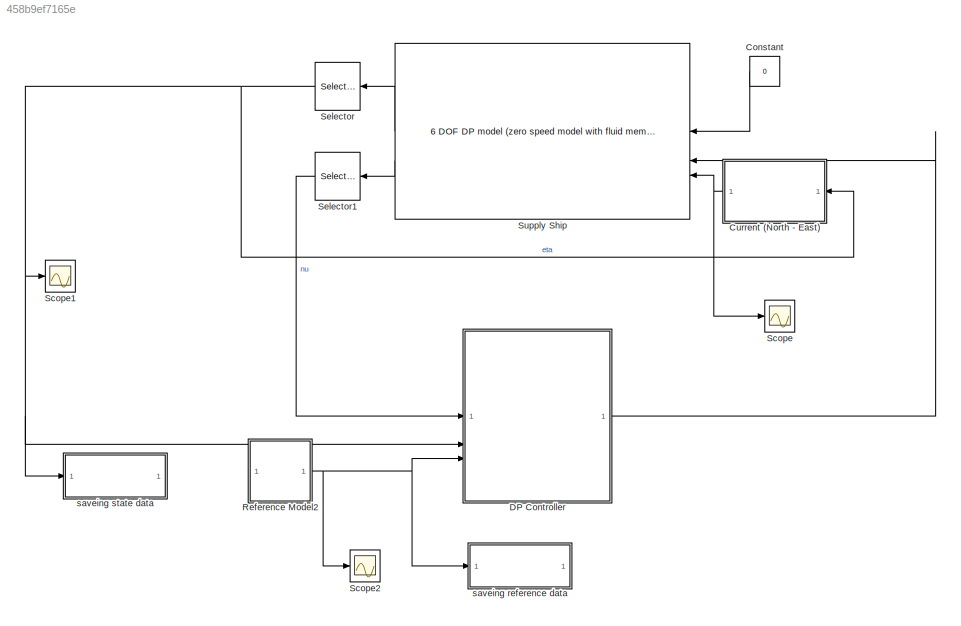
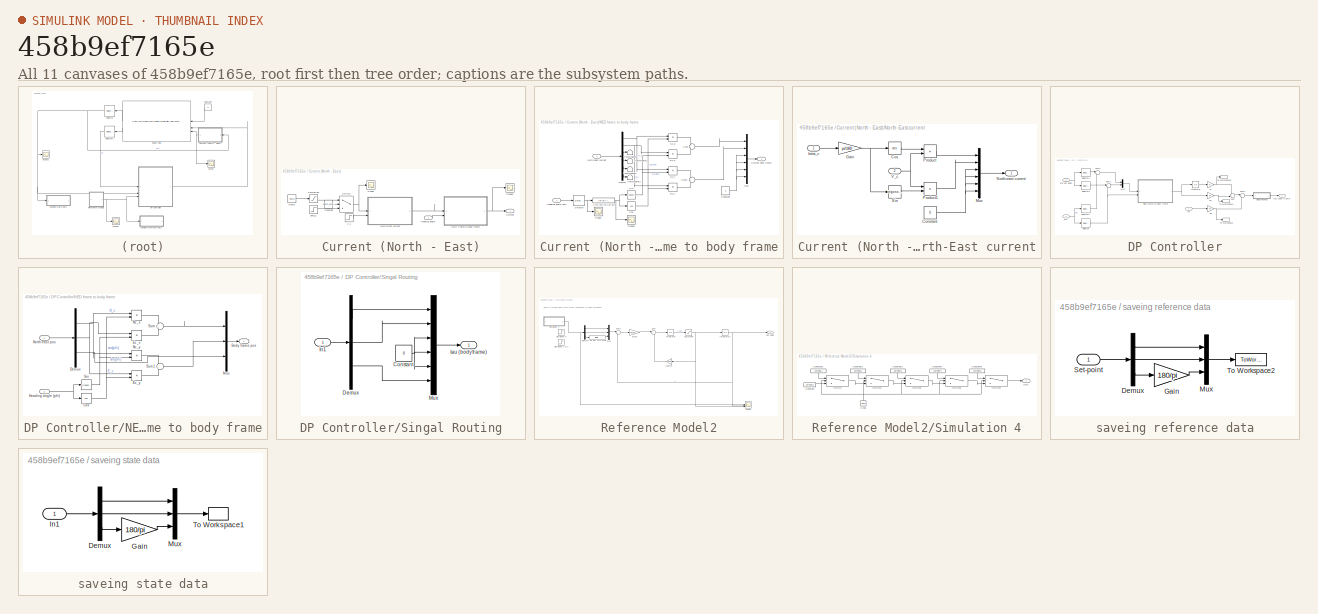
[diagram: thumbnail index - all 11 canvases of the model, root first then tree order]
MODEL slx_458b9ef7165e
KIND model
CONFIG AbsTol = auto
CONFIG EnableMultiTasking = off
CONFIG FixedStep = auto
CONFIG MaxStep = dt
CONFIG MinStep = auto
CONFIG RelTol = 1e-3
CONFIG SampleTimeConstraint = Unconstrained
CONFIG SolverName = ode45
CONFIG StartTime = 0.0
CONFIG StopTime = t_set
WORKSPACE source: mxarray member
WORKSPACE Amp = 1
BLOCK [Constant] Constant
  NameLocation = top
  Value = 0
BLOCK [SubSystem] Current (North - East)
BLOCK [Constant] Current (North - East)/Constant
  Value = switch_condition
BLOCK [Outport] Current (North - East)/Current
  VectorParamsAs1DForOutWhenUnconnected = off
BLOCK [Inport] Current (North - East)/Heading angle
  NameLocation = top
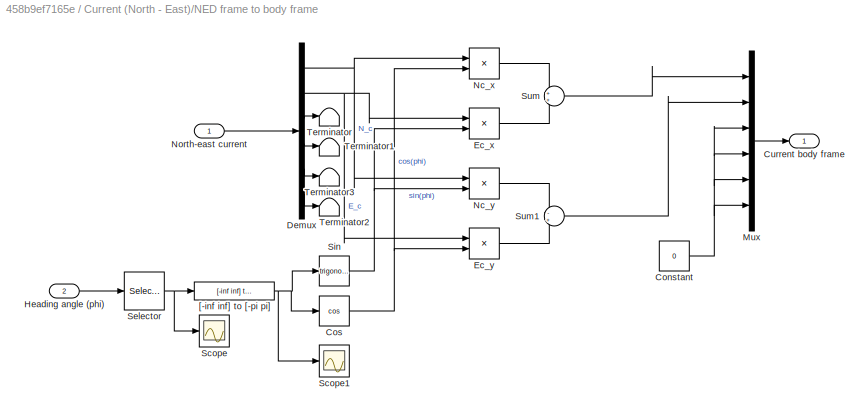
BLOCK [SubSystem] Current (North - East)/NED frame to body frame
BLOCK [Constant] Current (North - East)/NED frame to body frame/Constant
  Value = 0
BLOCK [Trigonometry] Current (North - East)/NED frame to body frame/Cos
  Operator = cos
BLOCK [Outport] Current (North - East)/NED frame to body frame/Current body frame
BLOCK [Demux] Current (North - East)/NED frame to body frame/Demux
  Outputs = 6
BLOCK [Product] Current (North - East)/NED frame to body frame/Ec_x
BLOCK [Product] Current (North - East)/NED frame to body frame/Ec_y
BLOCK [Inport] Current (North - East)/NED frame to body frame/Heading angle (phi)
  Port = 2
BLOCK [Mux] Current (North - East)/NED frame to body frame/Mux
  DisplayOption = bar
  Inputs = 6
BLOCK [Product] Current (North - East)/NED frame to body frame/Nc_x
BLOCK [Product] Current (North - East)/NED frame to body frame/Nc_y
BLOCK [Inport] Current (North - East)/NED frame to body frame/North-east current
BLOCK [Scope] Current (North - East)/NED frame to body frame/Scope
  Floating = off
  NumInputPorts = 1
  ScopeSpecificationString = Simulink.scopes.TimeScopeBlockCfg('CurrentConfiguration', extmgr.ConfigurationSet(extmgr.Configuration('Core','General UI',true),extmgr.Configuration('Core','Source UI',true),extmgr.Configuration('Sources','WiredSimulink',true,'DataLoggingVariableName','ScopeData2'),extmgr.Configuration('Visuals','Time Domain',true,'SerializedDisplays',{struct('MinYLimReal','-0.00083','MaxYLimReal','0.00742','YLab...<+1367ch>
BLOCK [Scope] Current (North - East)/NED frame to body frame/Scope1
  Floating = off
  NumInputPorts = 1
  ScopeSpecificationString = Simulink.scopes.TimeScopeBlockCfg('CurrentConfiguration', extmgr.ConfigurationSet(extmgr.Configuration('Core','General UI',true),extmgr.Configuration('Core','Source UI',true),extmgr.Configuration('Sources','WiredSimulink',true,'DataLoggingVariableName','ScopeData3'),extmgr.Configuration('Visuals','Time Domain',true,'SerializedDisplays',{struct('MinYLimReal','-0.00083','MaxYLimReal','0.00742','YLab...<+1381ch>
BLOCK [Selector] Current (North - East)/NED frame to body frame/Selector
  IndexOptions = Index vector (dialog)
  Indices = [3]
  InputPortWidth = 3
  OutputSizes = 1
BLOCK [Trigonometry] Current (North - East)/NED frame to body frame/Sin
BLOCK [Sum] Current (North - East)/NED frame to body frame/Sum
BLOCK [Sum] Current (North - East)/NED frame to body frame/Sum1
  Inputs = -+
BLOCK [Terminator] Current (North - East)/NED frame to body frame/Terminator
BLOCK [Terminator] Current (North - East)/NED frame to body frame/Terminator1
BLOCK [Terminator] Current (North - East)/NED frame to body frame/Terminator2
  NameLocation = right
BLOCK [Terminator] Current (North - East)/NED frame to body frame/Terminator3
BLOCK [Reference] Current (North - East)/NED frame to body frame/[-inf inf] to [-pi pi]  REF=marine_gnc/Utilities/Math Operations/[-inf inf] to [-pi pi]  (lib defined in mdl_10d96c221ba8, mdl_45f1105420c6)
  SourceBlock = marine_gnc/Utilities/Math Operations/[-inf inf] to [-pi pi]
  SourceType = [-inf inf] to [-pi pi]
BLOCK [SubSystem] Current (North - East)/North-East current
BLOCK [Constant] Current (North - East)/North-East current/Constant
  Value = 0
BLOCK [Trigonometry] Current (North - East)/North-East current/Cos
  Operator = cos
BLOCK [Gain] Current (North - East)/North-East current/Gain
  Gain = pi/180
BLOCK [Mux] Current (North - East)/North-East current/Mux
  DisplayOption = bar
  Inputs = 6
BLOCK [Outport] Current (North - East)/North-East current/North-east current
BLOCK [Product] Current (North - East)/North-East current/Product
BLOCK [Product] Current (North - East)/North-East current/Product1
BLOCK [Trigonometry] Current (North - East)/North-East current/Sin
BLOCK [Inport] Current (North - East)/North-East current/V_c
  Port = 2
BLOCK [Inport] Current (North - East)/North-East current/beta_c
BLOCK [Reference] Current (North - East)/Ramp  REF=simulink/Sources/Ramp
  SourceBlock = simulink/Sources/Ramp
  SourceType = Ramp
BLOCK [Saturate] Current (North - East)/Saturation
  LowerLimit = 0
  UpperLimit = 90
BLOCK [Scope] Current (North - East)/Scope
  Floating = off
  NumInputPorts = 1
  ScopeSpecificationString = Simulink.scopes.TimeScopeBlockCfg('CurrentConfiguration', extmgr.ConfigurationSet(extmgr.Configuration('Core','General UI',true),extmgr.Configuration('Core','Source UI',true),extmgr.Configuration('Sources','WiredSimulink',true,'DataLoggingVariableName','ScopeData1'),extmgr.Configuration('Visuals','Time Domain',true,'SerializedDisplays',{struct('MinYLimReal','35.00000','MaxYLimReal','235.00000','YL...<+1375ch>
BLOCK [Scope] Current (North - East)/Scope2
  Floating = off
  NumInputPorts = 1
  ScopeSpecificationString = Simulink.scopes.TimeScopeBlockCfg('CurrentConfiguration', extmgr.ConfigurationSet(extmgr.Configuration('Core','General UI',true),extmgr.Configuration('Core','Source UI',true),extmgr.Configuration('Sources','WiredSimulink',true,'DataLoggingVariableName','ScopeData1'),extmgr.Configuration('Visuals','Time Domain',true,'SerializedDisplays',{struct('MinYLimReal','-0.44224','MaxYLimReal','0.44456','YLab...<+1524ch>
BLOCK [Switch] Current (North - East)/Switch
  Criteria = u2 > Threshold
  InputSameDT = off
  SaturateOnIntegerOverflow = off
BLOCK [Step] Current (North - East)/V_c
  After = V_c
  SampleTime = 0
  Time = 0
BLOCK [Step] Current (North - East)/beta_c
  After = beta_c
  SampleTime = 0
  Time = 0
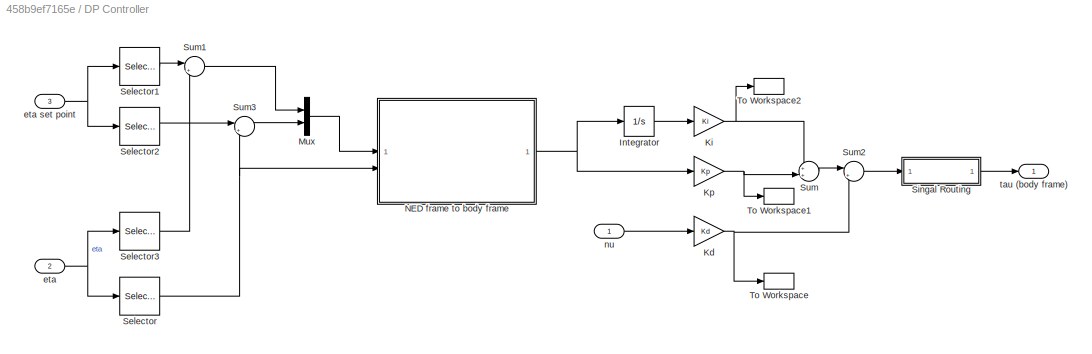
BLOCK [SubSystem] DP Controller
BLOCK [Integrator] DP Controller/Integrator
BLOCK [Gain] DP Controller/Kd
  Gain = Kd
BLOCK [Gain] DP Controller/Ki
  Gain = Ki
BLOCK [Gain] DP Controller/Kp
  Gain = Kp
BLOCK [Mux] DP Controller/Mux
  DisplayOption = bar
  Inputs = 2
BLOCK [SubSystem] DP Controller/NED frame to body frame
BLOCK [Outport] DP Controller/NED frame to body frame/Body frame pos
BLOCK [Trigonometry] DP Controller/NED frame to body frame/Cos
  Operator = cos
BLOCK [Demux] DP Controller/NED frame to body frame/Demux
  Outputs = 3
BLOCK [Product] DP Controller/NED frame to body frame/Ec_x
BLOCK [Product] DP Controller/NED frame to body frame/Ec_y
BLOCK [Inport] DP Controller/NED frame to body frame/Heading angle (phi)
  Port = 2
BLOCK [Mux] DP Controller/NED frame to body frame/Mux
  DisplayOption = bar
  Inputs = 3
BLOCK [Product] DP Controller/NED frame to body frame/Nc_x
BLOCK [Product] DP Controller/NED frame to body frame/Nc_y
BLOCK [Inport] DP Controller/NED frame to body frame/North-east pos
BLOCK [Trigonometry] DP Controller/NED frame to body frame/Sin
BLOCK [Sum] DP Controller/NED frame to body frame/Sum
BLOCK [Sum] DP Controller/NED frame to body frame/Sum1
  Inputs = -+
BLOCK [Selector] DP Controller/Selector
  IndexOptions = Index vector (dialog)
  Indices = [3]
  InputPortWidth = 3
  OutputSizes = 1
BLOCK [Selector] DP Controller/Selector1
  IndexOptions = Index vector (dialog)
  Indices = [1 2]
  InputPortWidth = 3
  OutputSizes = 1
BLOCK [Selector] DP Controller/Selector2
  IndexOptions = Index vector (dialog)
  Indices = [3]
  InputPortWidth = 3
  OutputSizes = 1
BLOCK [Selector] DP Controller/Selector3
  IndexOptions = Index vector (dialog)
  Indices = [1 2]
  InputPortWidth = 3
  OutputSizes = 1
BLOCK [SubSystem] DP Controller/Singal Routing
BLOCK [Constant] DP Controller/Singal Routing/Constant
  Value = 0
BLOCK [Demux] DP Controller/Singal Routing/Demux
  Outputs = 3
BLOCK [Inport] DP Controller/Singal Routing/In1
BLOCK [Mux] DP Controller/Singal Routing/Mux
  DisplayOption = bar
  Inputs = 6
BLOCK [Outport] DP Controller/Singal Routing/tau (body frame)
BLOCK [Sum] DP Controller/Sum
  Inputs = ++|
BLOCK [Sum] DP Controller/Sum1
  Inputs = |+-
BLOCK [Sum] DP Controller/Sum2
  Inputs = |+-
BLOCK [Sum] DP Controller/Sum3
  Inputs = |+-
BLOCK [ToWorkspace] DP Controller/To Workspace
  FixptAsFi = on
  MaxDataPoints = inf
  SampleTime = -1
  SaveFormat = Timeseries
  VariableName = kd_out
BLOCK [ToWorkspace] DP Controller/To Workspace1
  FixptAsFi = on
  MaxDataPoints = inf
  SampleTime = -1
  SaveFormat = Timeseries
  VariableName = kp_out
BLOCK [ToWorkspace] DP Controller/To Workspace2
  FixptAsFi = on
  MaxDataPoints = inf
  SampleTime = -1
  SaveFormat = Timeseries
  VariableName = ki_out
BLOCK [Inport] DP Controller/eta
  Port = 2
BLOCK [Inport] DP Controller/eta set point
  Port = 3
BLOCK [Inport] DP Controller/nu
BLOCK [Outport] DP Controller/tau (body frame)
  VectorParamsAs1DForOutWhenUnconnected = off
BLOCK [SubSystem] Reference Model2
BLOCK [Gain] Reference Model2/2Zomg
  Gain = Z2omg
  NameLocation = top
BLOCK [Demux] Reference Model2/Demux
  Outputs = 3
BLOCK [Integrator] Reference Model2/Integrator
BLOCK [Integrator] Reference Model2/Integrator1
BLOCK [Mux] Reference Model2/Mux
  DisplayOption = bar
  Inputs = 3
BLOCK [Saturate] Reference Model2/Saturation
  LowerLimit = -satMax
  UpperLimit = satMax
BLOCK [Scope] Reference Model2/Scope
  Floating = off
  NumInputPorts = 3
  ScopeSpecificationString = Simulink.scopes.TimeScopeBlockCfg('CurrentConfiguration', extmgr.ConfigurationSet(extmgr.Configuration('Core','General UI',true),extmgr.Configuration('Core','Source UI',true),extmgr.Configuration('Sources','WiredSimulink',true,'DataLoggingVariableName','ScopeData1'),extmgr.Configuration('Visuals','Time Domain',true,'SerializedDisplays',{struct('MinYLimReal','-62.5','MaxYLimReal','62.5','YLabelReal...<+1479ch>
BLOCK [Outport] Reference Model2/Set-point
  VectorParamsAs1DForOutWhenUnconnected = off
BLOCK [Step] Reference Model2/Simulation 1 & 2
  After = setPoint_sim12
  SampleTime = 0
  Time = 0
BLOCK [Step] Reference Model2/Simulation 3
  After = setPoint_sim3
  Before = init_setPoint
  SampleTime = 0
  Time = setPoint_change_time
BLOCK [SubSystem] Reference Model2/Simulation 4
BLOCK [Clock] Reference Model2/Simulation 4/Clock
  NameLocation = right
BLOCK [Constant] Reference Model2/Simulation 4/Constant
  Value = setPoint0
BLOCK [Constant] Reference Model2/Simulation 4/Constant1
  NameLocation = left
  Value = setPoint1
BLOCK [Constant] Reference Model2/Simulation 4/Constant2
  NameLocation = left
  Value = setPoint2
BLOCK [Constant] Reference Model2/Simulation 4/Constant3
  NameLocation = left
  Value = setPoint3
BLOCK [Constant] Reference Model2/Simulation 4/Constant4
  NameLocation = left
  Value = setPoint4
BLOCK [Constant] Reference Model2/Simulation 4/Constant5
  NameLocation = left
  Value = setPoint5
BLOCK [Outport] Reference Model2/Simulation 4/Out1
BLOCK [Switch] Reference Model2/Simulation 4/Switch
  Criteria = u2 > Threshold
  InputSameDT = off
  SaturateOnIntegerOverflow = off
  Threshold = setPoint_change_time
BLOCK [Switch] Reference Model2/Simulation 4/Switch1
  Criteria = u2 > Threshold
  InputSameDT = off
  SaturateOnIntegerOverflow = off
  Threshold = 2*setPoint_change_time
BLOCK [Switch] Reference Model2/Simulation 4/Switch2
  Criteria = u2 > Threshold
  InputSameDT = off
  SaturateOnIntegerOverflow = off
  Threshold = 3*setPoint_change_time
BLOCK [Switch] Reference Model2/Simulation 4/Switch3
  Criteria = u2 > Threshold
  InputSameDT = off
  SaturateOnIntegerOverflow = off
  Threshold = 4*setPoint_change_time
BLOCK [Switch] Reference Model2/Simulation 4/Switch4
  Criteria = u2 > Threshold
  InputSameDT = off
  SaturateOnIntegerOverflow = off
  Threshold = 5*setPoint_change_time
BLOCK [Sum] Reference Model2/Sum
  Inputs = |+-
BLOCK [Sum] Reference Model2/Sum1
  Inputs = |+-
BLOCK [Reference] Reference Model2/[-inf inf] to [-pi pi]  REF=marine_gnc/Utilities/Math Operations/[-inf inf] to [-pi pi]  (lib defined in mdl_10d96c221ba8, mdl_45f1105420c6)
  SourceBlock = marine_gnc/Utilities/Math Operations/[-inf inf] to [-pi pi]
  SourceType = [-inf inf] to [-pi pi]
BLOCK [Gain] Reference Model2/omg2
  Gain = omg2
BLOCK [Scope] Scope
  Floating = off
  NumInputPorts = 1
  ScopeSpecificationString = Simulink.scopes.TimeScopeBlockCfg('CurrentConfiguration', extmgr.ConfigurationSet(extmgr.Configuration('Core','General UI',true),extmgr.Configuration('Core','Source UI',true),extmgr.Configuration('Sources','WiredSimulink',true,'DataLoggingVariableName','ScopeData2'),extmgr.Configuration('Visuals','Time Domain',true,'SerializedDisplays',{struct('MinYLimReal','-1.00000','MaxYLimReal','1.00000','YLab...<+1518ch>
BLOCK [Scope] Scope1
  Floating = off
  NumInputPorts = 1
  ScopeSpecificationString = Simulink.scopes.TimeScopeBlockCfg('CurrentConfiguration', extmgr.ConfigurationSet(extmgr.Configuration('Core','General UI',true),extmgr.Configuration('Core','Source UI',true),extmgr.Configuration('Sources','WiredSimulink',true,'DataLoggingVariableName','ScopeData2'),extmgr.Configuration('Visuals','Time Domain',true,'SerializedDisplays',{struct('MinYLimReal','-62.60552','MaxYLimReal','62.52744','YL...<+1525ch>
BLOCK [Scope] Scope2
  Floating = off
  NumInputPorts = 1
  ScopeSpecificationString = Simulink.scopes.TimeScopeBlockCfg('CurrentConfiguration', extmgr.ConfigurationSet(extmgr.Configuration('Core','General UI',true),extmgr.Configuration('Core','Source UI',true),extmgr.Configuration('Sources','WiredSimulink',true,'DataLoggingVariableName','ScopeData3','DataLoggingSaveFormat','Array','DataLoggingDecimation','1'),extmgr.Configuration('Visuals','Time Domain',true,'SerializedDisplays',{s...<+1727ch>
BLOCK [Selector] Selector
  IndexOptions = Index vector (dialog)
  Indices = [1 2 6]
  InputPortWidth = 6
  NameLocation = top
  OutputSizes = 1
BLOCK [Selector] Selector1
  IndexOptions = Index vector (dialog)
  Indices = [1 2 6]
  InputPortWidth = 6
  NameLocation = top
  OutputSizes = 1
BLOCK [Reference] Supply Ship  REF=marine_hydro/Hydro Library/6 DOF DP model
 (zero speed model with fluid memory)
  SourceBlock = marine_hydro/Hydro Library/6 DOF DP model\n (zero speed model with fluid memory)
  SourceType = 6 DOF zero speed model
BLOCK [SubSystem] saveing reference data
BLOCK [Demux] saveing reference data/Demux
  Outputs = 3
BLOCK [Gain] saveing reference data/Gain
  Gain = 180/pi
BLOCK [Mux] saveing reference data/Mux
  DisplayOption = bar
  Inputs = 3
BLOCK [Inport] saveing reference data/Set-point
BLOCK [ToWorkspace] saveing reference data/To Workspace2
  FixptAsFi = on
  MaxDataPoints = inf
  SampleTime = -1
  SaveFormat = Timeseries
  VariableName = set_point
BLOCK [SubSystem] saveing state data
BLOCK [Demux] saveing state data/Demux
  Outputs = 3
BLOCK [Gain] saveing state data/Gain
  Gain = 180/pi
BLOCK [Inport] saveing state data/In1
BLOCK [Mux] saveing state data/Mux
  DisplayOption = bar
  Inputs = 3
BLOCK [ToWorkspace] saveing state data/To Workspace1
  FixptAsFi = on
  MaxDataPoints = inf
  SampleTime = -1
  SaveFormat = Timeseries
  VariableName = pos
ANNOTATION Reference Model2: Need to change which step model, dependent on which simulation
LINE Constant:1 -> Supply Ship:1
LINE Current (North - East)/Constant:1 -> Current (North - East)/Switch:2
LINE Current (North - East)/Heading angle:1 -> Current (North - East)/NED frame to body frame:2
NET Current (North - East)/NED frame to body frame/Constant:1 -> Current (North - East)/NED frame to body frame/Mux:3, Current (North - East)/NED frame to body frame/Mux:4, Current (North - East)/NED frame to body frame/Mux:5, Current (North - East)/NED frame to body frame/Mux:6
NET Current (North - East)/NED frame to body frame/Cos:1 -> Current (North - East)/NED frame to body frame/Ec_y:2, Current (North - East)/NED frame to body frame/Nc_x:2
NET Current (North - East)/NED frame to body frame/Demux:1 -> Current (North - East)/NED frame to body frame/Nc_x:1, Current (North - East)/NED frame to body frame/Nc_y:1
NET Current (North - East)/NED frame to body frame/Demux:2 -> Current (North - East)/NED frame to body frame/Ec_x:1, Current (North - East)/NED frame to body frame/Ec_y:1
LINE Current (North - East)/NED frame to body frame/Demux:3 -> Current (North - East)/NED frame to body frame/Terminator:1
LINE Current (North - East)/NED frame to body frame/Demux:4 -> Current (North - East)/NED frame to body frame/Terminator1:1
LINE Current (North - East)/NED frame to body frame/Demux:5 -> Current (North - East)/NED frame to body frame/Terminator3:1
LINE Current (North - East)/NED frame to body frame/Demux:6 -> Current (North - East)/NED frame to body frame/Terminator2:1
LINE Current (North - East)/NED frame to body frame/Ec_x:1 -> Current (North - East)/NED frame to body frame/Sum:2
LINE Current (North - East)/NED frame to body frame/Ec_y:1 -> Current (North - East)/NED frame to body frame/Sum1:2
LINE Current (North - East)/NED frame to body frame/Heading angle (phi):1 -> Current (North - East)/NED frame to body frame/Selector:1
LINE Current (North - East)/NED frame to body frame/Mux:1 -> Current (North - East)/NED frame to body frame/Current body frame:1
LINE Current (North - East)/NED frame to body frame/Nc_x:1 -> Current (North - East)/NED frame to body frame/Sum:1
LINE Current (North - East)/NED frame to body frame/Nc_y:1 -> Current (North - East)/NED frame to body frame/Sum1:1
LINE Current (North - East)/NED frame to body frame/North-east current:1 -> Current (North - East)/NED frame to body frame/Demux:1
NET Current (North - East)/NED frame to body frame/Selector:1 -> Current (North - East)/NED frame to body frame/Scope:1, Current (North - East)/NED frame to body frame/[-inf inf] to [-pi pi]:1
NET Current (North - East)/NED frame to body frame/Sin:1 -> Current (North - East)/NED frame to body frame/Ec_x:2, Current (North - East)/NED frame to body frame/Nc_y:2
LINE Current (North - East)/NED frame to body frame/Sum1:1 -> Current (North - East)/NED frame to body frame/Mux:2
LINE Current (North - East)/NED frame to body frame/Sum:1 -> Current (North - East)/NED frame to body frame/Mux:1
NET Current (North - East)/NED frame to body frame/[-inf inf] to [-pi pi]:1 -> Current (North - East)/NED frame to body frame/Cos:1, Current (North - East)/NED frame to body frame/Scope1:1, Current (North - East)/NED frame to body frame/Sin:1
NET Current (North - East)/NED frame to body frame:1 -> Current (North - East)/Current:1, Current (North - East)/Scope2:1
NET Current (North - East)/North-East current/Constant:1 -> Current (North - East)/North-East current/Mux:3, Current (North - East)/North-East current/Mux:4, Current (North - East)/North-East current/Mux:5, Current (North - East)/North-East current/Mux:6
LINE Current (North - East)/North-East current/Cos:1 -> Current (North - East)/North-East current/Product:1
NET Current (North - East)/North-East current/Gain:1 -> Current (North - East)/North-East current/Cos:1, Current (North - East)/North-East current/Sin:1
LINE Current (North - East)/North-East current/Mux:1 -> Current (North - East)/North-East current/North-east current:1
LINE Current (North - East)/North-East current/Product1:1 -> Current (North - East)/North-East current/Mux:2
LINE Current (North - East)/North-East current/Product:1 -> Current (North - East)/North-East current/Mux:1
LINE Current (North - East)/North-East current/Sin:1 -> Current (North - East)/North-East current/Product1:2
NET Current (North - East)/North-East current/V_c:1 -> Current (North - East)/North-East current/Product1:1, Current (North - East)/North-East current/Product:2
LINE Current (North - East)/North-East current/beta_c:1 -> Current (North - East)/North-East current/Gain:1
LINE Current (North - East)/North-East current:1 -> Current (North - East)/NED frame to body frame:1
LINE Current (North - East)/Ramp:1 -> Current (North - East)/Saturation:1
LINE Current (North - East)/Saturation:1 -> Current (North - East)/Switch:1
NET Current (North - East)/Switch:1 -> Current (North - East)/North-East current:1, Current (North - East)/Scope:1
LINE Current (North - East)/V_c:1 -> Current (North - East)/North-East current:2
LINE Current (North - East)/beta_c:1 -> Current (North - East)/Switch:3
NET Current (North - East):1 -> Scope:1, Supply Ship:3
LINE DP Controller/Integrator:1 -> DP Controller/Ki:1
NET DP Controller/Kd:1 -> DP Controller/Sum2:2, DP Controller/To Workspace:1
NET DP Controller/Ki:1 -> DP Controller/Sum:1, DP Controller/To Workspace2:1
NET DP Controller/Kp:1 -> DP Controller/Sum:2, DP Controller/To Workspace1:1
LINE DP Controller/Mux:1 -> DP Controller/NED frame to body frame:1
NET DP Controller/NED frame to body frame/Cos:1 -> DP Controller/NED frame to body frame/Ec_y:2, DP Controller/NED frame to body frame/Nc_x:2
NET DP Controller/NED frame to body frame/Demux:1 -> DP Controller/NED frame to body frame/Nc_x:1, DP Controller/NED frame to body frame/Nc_y:1
NET DP Controller/NED frame to body frame/Demux:2 -> DP Controller/NED frame to body frame/Ec_x:1, DP Controller/NED frame to body frame/Ec_y:1
LINE DP Controller/NED frame to body frame/Demux:3 -> DP Controller/NED frame to body frame/Mux:3
LINE DP Controller/NED frame to body frame/Ec_x:1 -> DP Controller/NED frame to body frame/Sum:2
LINE DP Controller/NED frame to body frame/Ec_y:1 -> DP Controller/NED frame to body frame/Sum1:2
NET DP Controller/NED frame to body frame/Heading angle (phi):1 -> DP Controller/NED frame to body frame/Cos:1, DP Controller/NED frame to body frame/Sin:1
LINE DP Controller/NED frame to body frame/Mux:1 -> DP Controller/NED frame to body frame/Body frame pos:1
LINE DP Controller/NED frame to body frame/Nc_x:1 -> DP Controller/NED frame to body frame/Sum:1
LINE DP Controller/NED frame to body frame/Nc_y:1 -> DP Controller/NED frame to body frame/Sum1:1
LINE DP Controller/NED frame to body frame/North-east pos:1 -> DP Controller/NED frame to body frame/Demux:1
NET DP Controller/NED frame to body frame/Sin:1 -> DP Controller/NED frame to body frame/Ec_x:2, DP Controller/NED frame to body frame/Nc_y:2
LINE DP Controller/NED frame to body frame/Sum1:1 -> DP Controller/NED frame to body frame/Mux:2
LINE DP Controller/NED frame to body frame/Sum:1 -> DP Controller/NED frame to body frame/Mux:1
NET DP Controller/NED frame to body frame:1 -> DP Controller/Integrator:1, DP Controller/Kp:1
LINE DP Controller/Selector1:1 -> DP Controller/Sum1:1
LINE DP Controller/Selector2:1 -> DP Controller/Sum3:1
LINE DP Controller/Selector3:1 -> DP Controller/Sum1:2
NET DP Controller/Selector:1 -> DP Controller/NED frame to body frame:2, DP Controller/Sum3:2
NET DP Controller/Singal Routing/Constant:1 -> DP Controller/Singal Routing/Mux:3, DP Controller/Singal Routing/Mux:4, DP Controller/Singal Routing/Mux:5
LINE DP Controller/Singal Routing/Demux:1 -> DP Controller/Singal Routing/Mux:1
LINE DP Controller/Singal Routing/Demux:2 -> DP Controller/Singal Routing/Mux:2
LINE DP Controller/Singal Routing/Demux:3 -> DP Controller/Singal Routing/Mux:6
LINE DP Controller/Singal Routing/In1:1 -> DP Controller/Singal Routing/Demux:1
LINE DP Controller/Singal Routing/Mux:1 -> DP Controller/Singal Routing/tau (body frame):1
LINE DP Controller/Singal Routing:1 -> DP Controller/tau (body frame):1
LINE DP Controller/Sum1:1 -> DP Controller/Mux:1
LINE DP Controller/Sum2:1 -> DP Controller/Singal Routing:1
LINE DP Controller/Sum3:1 -> DP Controller/Mux:2
LINE DP Controller/Sum:1 -> DP Controller/Sum2:1
NET DP Controller/eta set point:1 -> DP Controller/Selector1:1, DP Controller/Selector2:1
NET DP Controller/eta:1 -> DP Controller/Selector3:1, DP Controller/Selector:1
LINE DP Controller/nu:1 -> DP Controller/Kd:1
LINE DP Controller:1 -> Supply Ship:2
LINE Reference Model2/2Zomg:1 -> Reference Model2/Sum:2
LINE Reference Model2/Demux:1 -> Reference Model2/Mux:1
LINE Reference Model2/Demux:2 -> Reference Model2/Mux:2
LINE Reference Model2/Demux:3 -> Reference Model2/[-inf inf] to [-pi pi]:1
NET Reference Model2/Integrator1:1 -> Reference Model2/Scope:2, Reference Model2/Set-point:1, Reference Model2/Sum1:2
LINE Reference Model2/Integrator:1 -> Reference Model2/Saturation:1
LINE Reference Model2/Mux:1 -> Reference Model2/Sum1:1
NET Reference Model2/Saturation:1 -> Reference Model2/2Zomg:1, Reference Model2/Integrator1:1, Reference Model2/Scope:3
NET Reference Model2/Simulation 4/Clock:1 -> Reference Model2/Simulation 4/Switch1:2, Reference Model2/Simulation 4/Switch2:2, Reference Model2/Simulation 4/Switch3:2, Reference Model2/Simulation 4/Switch4:2, Reference Model2/Simulation 4/Switch:2
LINE Reference Model2/Simulation 4/Constant1:1 -> Reference Model2/Simulation 4/Switch:1
LINE Reference Model2/Simulation 4/Constant2:1 -> Reference Model2/Simulation 4/Switch1:1
LINE Reference Model2/Simulation 4/Constant3:1 -> Reference Model2/Simulation 4/Switch2:1
LINE Reference Model2/Simulation 4/Constant4:1 -> Reference Model2/Simulation 4/Switch3:1
LINE Reference Model2/Simulation 4/Constant5:1 -> Reference Model2/Simulation 4/Switch4:1
LINE Reference Model2/Simulation 4/Constant:1 -> Reference Model2/Simulation 4/Switch:3
LINE Reference Model2/Simulation 4/Switch1:1 -> Reference Model2/Simulation 4/Switch2:3
LINE Reference Model2/Simulation 4/Switch2:1 -> Reference Model2/Simulation 4/Switch3:3
LINE Reference Model2/Simulation 4/Switch3:1 -> Reference Model2/Simulation 4/Switch4:3
LINE Reference Model2/Simulation 4/Switch4:1 -> Reference Model2/Simulation 4/Out1:1
LINE Reference Model2/Simulation 4/Switch:1 -> Reference Model2/Simulation 4/Switch1:3
NET Reference Model2/Simulation 4:1 -> Reference Model2/Demux:1, Reference Model2/Scope:1
LINE Reference Model2/Sum1:1 -> Reference Model2/omg2:1
LINE Reference Model2/Sum:1 -> Reference Model2/Integrator:1
LINE Reference Model2/[-inf inf] to [-pi pi]:1 -> Reference Model2/Mux:3
LINE Reference Model2/omg2:1 -> Reference Model2/Sum:1
NET Reference Model2:1 -> DP Controller:3, Scope2:1, saveing reference data:1
LINE Selector1:1 -> DP Controller:1
NET Selector:1 -> Current (North - East):1, DP Controller:2, Scope1:1, saveing state data:1
LINE Supply Ship:1 -> Selector:1
LINE Supply Ship:2 -> Selector1:1
LINE saveing reference data/Demux:1 -> saveing reference data/Mux:1
LINE saveing reference data/Demux:2 -> saveing reference data/Mux:2
LINE saveing reference data/Demux:3 -> saveing reference data/Gain:1
LINE saveing reference data/Gain:1 -> saveing reference data/Mux:3
LINE saveing reference data/Mux:1 -> saveing reference data/To Workspace2:1
LINE saveing reference data/Set-point:1 -> saveing reference data/Demux:1
LINE saveing state data/Demux:1 -> saveing state data/Mux:1
LINE saveing state data/Demux:2 -> saveing state data/Mux:2
LINE saveing state data/Demux:3 -> saveing state data/Gain:1
LINE saveing state data/Gain:1 -> saveing state data/Mux:3
LINE saveing state data/In1:1 -> saveing state data/Demux:1
LINE saveing state data/Mux:1 -> saveing state data/To Workspace1:1
note: NET lines group one-source signal fan-out (src -> all destinations, sorted); 1:1 wires keep LINE
